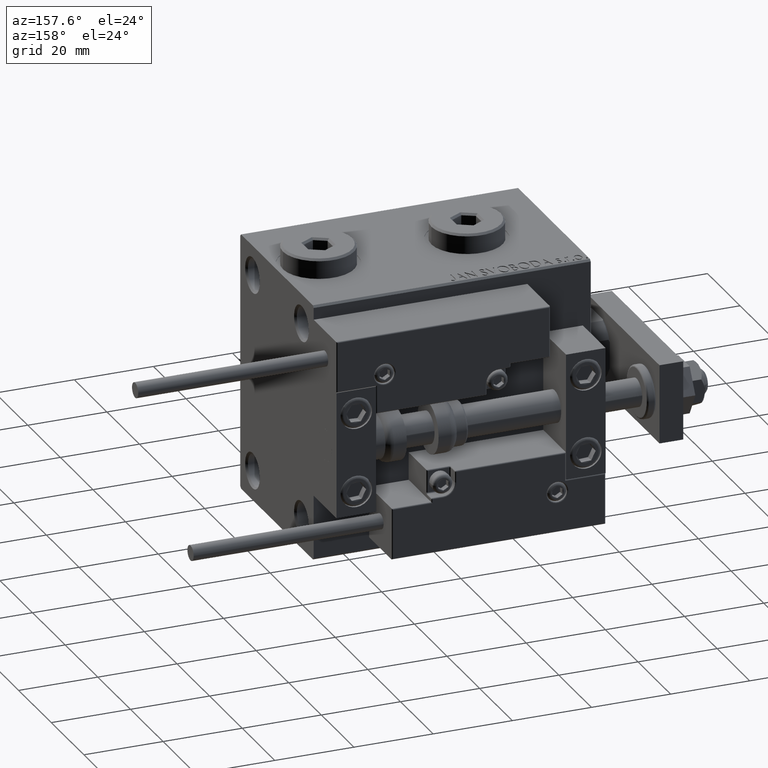
[diagram: clean part render]
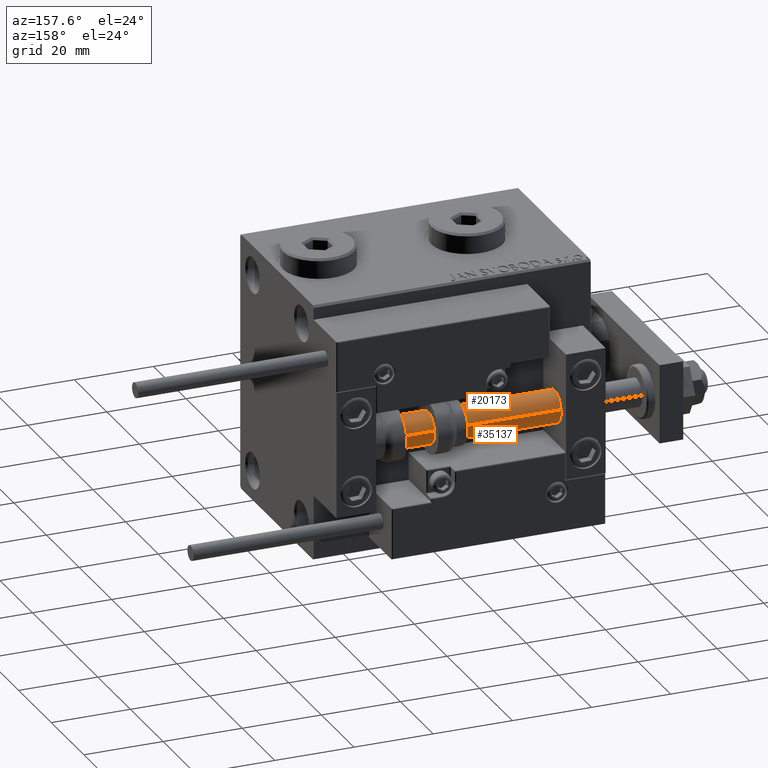
[diagram: same view with one multi-face feature highlighted, each face labeled with its STEP entity id]
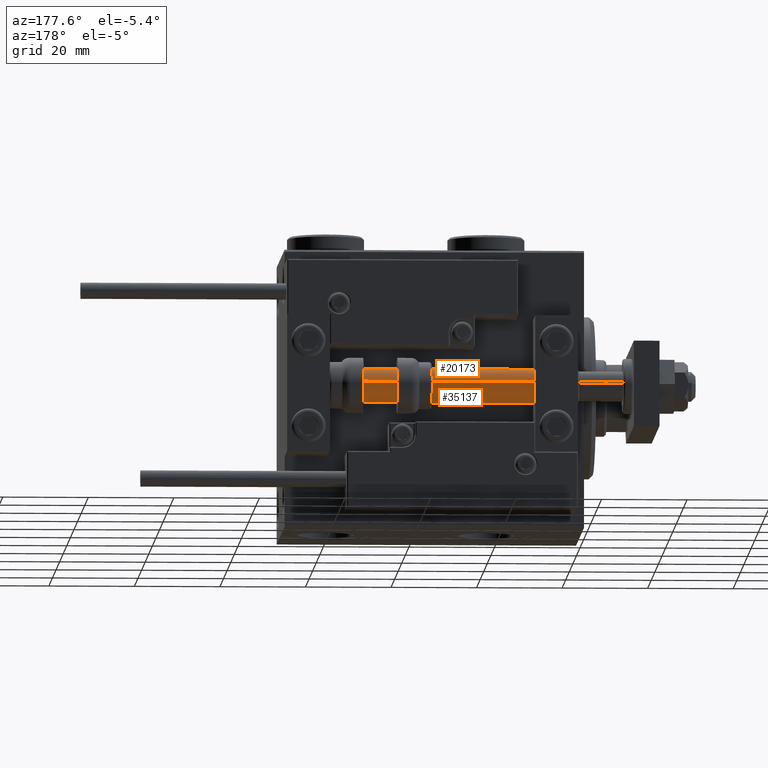
[diagram: same view with one multi-face feature highlighted, each face labeled with its STEP entity id]
A machine part, auxiliary view. The highlighted faces form ONE feature: a constant-radius fillet chain: 2 tangent blend faces with common blend radius 4 mm. The faces share edges in the B-rep.
A second angle (auxiliary view) of the same feature is appended — it is thin or edge-on in the first view.
Their STEP definitions:
[1] entity #20173 (Cylinder):
#2765 = EDGE_CURVE ( 'NONE', #31778, #26639, #18453, .T. ) ;
#4797 = ORIENTED_EDGE ( 'NONE', *, *, #5668, .T. ) ;
#5207 = EDGE_CURVE ( 'NONE', #44802, #31778, #39467, .T. ) ;
#5668 = EDGE_CURVE ( 'NONE', #44802, #30238, #33435, .T. ) ;
#6220 = DIRECTION ( 'NONE',  ( -0.000000000000000000, -0.000000000000000000, -1.000000000000000000 ) ) ;
#7621 = CARTESIAN_POINT ( 'NONE',  ( -4.000000000000000000, 0.000000000000000000, 2.000000000000029310 ) ) ;
#7767 = CARTESIAN_POINT ( 'NONE',  ( 4.000000000000000000, 4.898587196589412829E-16, 2.000000000000029310 ) ) ;
#7939 = CARTESIAN_POINT ( 'NONE',  ( 4.000000000000000000, 4.898587196589412829E-16, 70.00000000000000000 ) ) ;
#10648 = AXIS2_PLACEMENT_3D ( 'NONE', #37823, #49549, #17369 ) ;
#17242 = DIRECTION ( 'NONE',  ( -0.000000000000000000, -0.000000000000000000, -1.000000000000000000 ) ) ;
#17332 = AXIS2_PLACEMENT_3D ( 'NONE', #27342, #23375, #39578 ) ;
#17369 = DIRECTION ( 'NONE',  ( 1.000000000000000000, 0.000000000000000000, 0.000000000000000000 ) ) ;
#17660 = CARTESIAN_POINT ( 'NONE',  ( -4.000000000000000000, 0.000000000000000000, 70.00000000000000000 ) ) ;
#18453 = LINE ( 'NONE', #17660, #19187 ) ;
#19187 = VECTOR ( 'NONE', #6220, 1000.000000000000000 ) ;
#20173 = ADVANCED_FACE ( 'NONE', ( #28878 ), #29662, .T. ) ;
#22884 = ORIENTED_EDGE ( 'NONE', *, *, #50559, .T. ) ;
#23375 = DIRECTION ( 'NONE',  ( -0.000000000000000000, -0.000000000000000000, 1.000000000000000000 ) ) ;
#25164 = CARTESIAN_POINT ( 'NONE',  ( 0.000000000000000000, 0.000000000000000000, 70.00000000000000000 ) ) ;
#26639 = VERTEX_POINT ( 'NONE', #7621 ) ;
#27342 = CARTESIAN_POINT ( 'NONE',  ( 0.000000000000000000, 0.000000000000000000, 2.000000000000029310 ) ) ;
#28501 = VECTOR ( 'NONE', #17242, 1000.000000000000000 ) ;
#28878 = FACE_OUTER_BOUND ( 'NONE', #39674, .T. ) ;
#29662 = CYLINDRICAL_SURFACE ( 'NONE', #50624, 4.000000000000000000 ) ;
#30238 = VERTEX_POINT ( 'NONE', #7767 ) ;
#31778 = VERTEX_POINT ( 'NONE', #45624 ) ;
#31942 = ORIENTED_EDGE ( 'NONE', *, *, #5207, .F. ) ;
#33435 = LINE ( 'NONE', #37437, #28501 ) ;
#37437 = CARTESIAN_POINT ( 'NONE',  ( 4.000000000000000000, 4.898587196589412829E-16, 70.00000000000000000 ) ) ;
#37823 = CARTESIAN_POINT ( 'NONE',  ( 0.000000000000000000, 0.000000000000000000, 70.00000000000000000 ) ) ;
#38030 = ORIENTED_EDGE ( 'NONE', *, *, #2765, .F. ) ;
#39467 = CIRCLE ( 'NONE', #10648, 4.000000000000000000 ) ;
#39578 = DIRECTION ( 'NONE',  ( 1.000000000000000000, 0.000000000000000000, 0.000000000000000000 ) ) ;
#39674 = EDGE_LOOP ( 'NONE', ( #31942, #4797, #22884, #38030 ) ) ;
#41643 = DIRECTION ( 'NONE',  ( -0.000000000000000000, -0.000000000000000000, -1.000000000000000000 ) ) ;
#44802 = VERTEX_POINT ( 'NONE', #7939 ) ;
#45624 = CARTESIAN_POINT ( 'NONE',  ( -4.000000000000000000, 0.000000000000000000, 70.00000000000000000 ) ) ;
#45897 = DIRECTION ( 'NONE',  ( -1.000000000000000000, 0.000000000000000000, 0.000000000000000000 ) ) ;
#49549 = DIRECTION ( 'NONE',  ( 0.000000000000000000, 0.000000000000000000, 1.000000000000000000 ) ) ;
#49594 = CIRCLE ( 'NONE', #17332, 4.000000000000000000 ) ;
#50559 = EDGE_CURVE ( 'NONE', #30238, #26639, #49594, .T. ) ;
#50624 = AXIS2_PLACEMENT_3D ( 'NONE', #25164, #41643, #45897 ) ;
[2] entity #35137 (Cylinder):
#2681 = EDGE_LOOP ( 'NONE', ( #10497, #50002, #43828, #29803 ) ) ;
#2765 = EDGE_CURVE ( 'NONE', #31778, #26639, #18453, .T. ) ;
#5668 = EDGE_CURVE ( 'NONE', #44802, #30238, #33435, .T. ) ;
#6220 = DIRECTION ( 'NONE',  ( -0.000000000000000000, -0.000000000000000000, -1.000000000000000000 ) ) ;
#7621 = CARTESIAN_POINT ( 'NONE',  ( -4.000000000000000000, 0.000000000000000000, 2.000000000000029310 ) ) ;
#7725 = CIRCLE ( 'NONE', #32367, 4.000000000000000000 ) ;
#7767 = CARTESIAN_POINT ( 'NONE',  ( 4.000000000000000000, 4.898587196589412829E-16, 2.000000000000029310 ) ) ;
#7939 = CARTESIAN_POINT ( 'NONE',  ( 4.000000000000000000, 4.898587196589412829E-16, 70.00000000000000000 ) ) ;
#10497 = ORIENTED_EDGE ( 'NONE', *, *, #5668, .F. ) ;
#10911 = DIRECTION ( 'NONE',  ( -1.000000000000000000, 0.000000000000000000, 0.000000000000000000 ) ) ;
#10956 = DIRECTION ( 'NONE',  ( -0.000000000000000000, -0.000000000000000000, 1.000000000000000000 ) ) ;
#17214 = CIRCLE ( 'NONE', #46923, 4.000000000000000000 ) ;
#17242 = DIRECTION ( 'NONE',  ( -0.000000000000000000, -0.000000000000000000, -1.000000000000000000 ) ) ;
#17660 = CARTESIAN_POINT ( 'NONE',  ( -4.000000000000000000, 0.000000000000000000, 70.00000000000000000 ) ) ;
#18453 = LINE ( 'NONE', #17660, #19187 ) ;
#19187 = VECTOR ( 'NONE', #6220, 1000.000000000000000 ) ;
#19957 = CARTESIAN_POINT ( 'NONE',  ( 0.000000000000000000, 0.000000000000000000, 70.00000000000000000 ) ) ;
#23177 = CARTESIAN_POINT ( 'NONE',  ( 0.000000000000000000, 0.000000000000000000, 2.000000000000029310 ) ) ;
#26639 = VERTEX_POINT ( 'NONE', #7621 ) ;
#27150 = DIRECTION ( 'NONE',  ( 1.000000000000000000, 0.000000000000000000, 0.000000000000000000 ) ) ;
#27960 = AXIS2_PLACEMENT_3D ( 'NONE', #19957, #51309, #10911 ) ;
#28501 = VECTOR ( 'NONE', #17242, 1000.000000000000000 ) ;
#29803 = ORIENTED_EDGE ( 'NONE', *, *, #45274, .T. ) ;
#30238 = VERTEX_POINT ( 'NONE', #7767 ) ;
#31778 = VERTEX_POINT ( 'NONE', #45624 ) ;
#32367 = AXIS2_PLACEMENT_3D ( 'NONE', #23177, #10956, #27150 ) ;
#32970 = DIRECTION ( 'NONE',  ( 1.000000000000000000, 0.000000000000000000, 0.000000000000000000 ) ) ;
#33435 = LINE ( 'NONE', #37437, #28501 ) ;
#33491 = CARTESIAN_POINT ( 'NONE',  ( 0.000000000000000000, 0.000000000000000000, 70.00000000000000000 ) ) ;
#35077 = FACE_OUTER_BOUND ( 'NONE', #2681, .T. ) ;
#35137 = ADVANCED_FACE ( 'NONE', ( #35077 ), #40133, .T. ) ;
#37437 = CARTESIAN_POINT ( 'NONE',  ( 4.000000000000000000, 4.898587196589412829E-16, 70.00000000000000000 ) ) ;
#40133 = CYLINDRICAL_SURFACE ( 'NONE', #27960, 4.000000000000000000 ) ;
#40956 = DIRECTION ( 'NONE',  ( 0.000000000000000000, 0.000000000000000000, 1.000000000000000000 ) ) ;
#43828 = ORIENTED_EDGE ( 'NONE', *, *, #2765, .T. ) ;
#44802 = VERTEX_POINT ( 'NONE', #7939 ) ;
#45274 = EDGE_CURVE ( 'NONE', #26639, #30238, #7725, .T. ) ;
#45624 = CARTESIAN_POINT ( 'NONE',  ( -4.000000000000000000, 0.000000000000000000, 70.00000000000000000 ) ) ;
#46923 = AXIS2_PLACEMENT_3D ( 'NONE', #33491, #40956, #32970 ) ;
#49057 = EDGE_CURVE ( 'NONE', #31778, #44802, #17214, .T. ) ;
#50002 = ORIENTED_EDGE ( 'NONE', *, *, #49057, .F. ) ;
#51309 = DIRECTION ( 'NONE',  ( -0.000000000000000000, -0.000000000000000000, -1.000000000000000000 ) ) ;